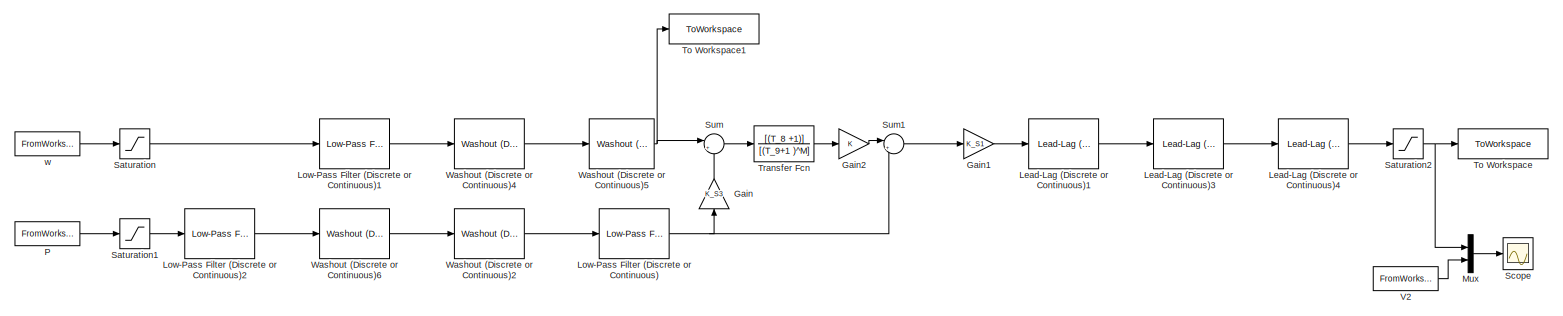
[diagram: root canvas - part 1/1, most of the canvas]
MODEL slx_57f6dd41a064
KIND model
CONFIG AbsTol = auto
CONFIG EnableMultiTasking = off
CONFIG FixedStep = 0.005
CONFIG MaxStep = 0.005
CONFIG MinStep = auto
CONFIG RelTol = 1e-3
CONFIG SampleTimeConstraint = Unconstrained
CONFIG Solver = ode8
CONFIG SolverName = ode8
CONFIG StartTime = 0.0
CONFIG StopTime = 5
BLOCK [Gain] Gain
  Gain = K_S3
  NameLocation = right
BLOCK [Gain] Gain1
  Gain = K_S1
BLOCK [Gain] Gain2
BLOCK [Reference] Lead-Lag (Discrete or Continuous)1  REF=eeGeneralControl/Lead-Lag
(Discrete or Continuous)
  Ports = [1, 1]
  SourceBlock = eeGeneralControl/Lead-Lag\n(Discrete or Continuous)
  SourceProductBaseCode = PS
  SourceType = Lead-Lag (Discrete or Continuous)
BLOCK [Reference] Lead-Lag (Discrete or Continuous)3  REF=eeGeneralControl/Lead-Lag
(Discrete or Continuous)
  Ports = [1, 1]
  SourceBlock = eeGeneralControl/Lead-Lag\n(Discrete or Continuous)
  SourceProductBaseCode = PS
  SourceType = Lead-Lag (Discrete or Continuous)
BLOCK [Reference] Lead-Lag (Discrete or Continuous)4  REF=eeGeneralControl/Lead-Lag
(Discrete or Continuous)
  Ports = [1, 1]
  SourceBlock = eeGeneralControl/Lead-Lag\n(Discrete or Continuous)
  SourceProductBaseCode = PS
  SourceType = Lead-Lag (Discrete or Continuous)
BLOCK [Reference] Low-Pass Filter (Discrete or Continuous)  REF=eeGeneralControl/Low-Pass Filter
(Discrete or Continuous)
  Ports = [1, 1]
  SourceBlock = eeGeneralControl/Low-Pass Filter\n(Discrete or Continuous)
  SourceProductBaseCode = PS
  SourceType = Low-Pass Filter (Discrete or Continuous)
BLOCK [Reference] Low-Pass Filter (Discrete or Continuous)1  REF=eeGeneralControl/Low-Pass Filter
(Discrete or Continuous)
  Ports = [1, 1]
  SourceBlock = eeGeneralControl/Low-Pass Filter\n(Discrete or Continuous)
  SourceProductBaseCode = PS
  SourceType = Low-Pass Filter (Discrete or Continuous)
BLOCK [Reference] Low-Pass Filter (Discrete or Continuous)2  REF=eeGeneralControl/Low-Pass Filter
(Discrete or Continuous)
  Ports = [1, 1]
  SourceBlock = eeGeneralControl/Low-Pass Filter\n(Discrete or Continuous)
  SourceProductBaseCode = PS
  SourceType = Low-Pass Filter (Discrete or Continuous)
BLOCK [Mux] Mux
  DisplayOption = bar
  Inputs = 2
  Ports = [2, 1]
BLOCK [FromWorkspace] P
  VariableName = [time,P]
BLOCK [Saturate] Saturation
  LowerLimit = V_S1MIN
  UpperLimit = V_S1MAX
BLOCK [Saturate] Saturation1
  LowerLimit = V_S2MIN
  UpperLimit = V_S2MAX
BLOCK [Saturate] Saturation2
  LowerLimit = V_STMIN
  UpperLimit = V_STMAX
BLOCK [Scope] Scope
  Floating = off
  NumInputPorts = 1
  Ports = [1]
  ScopeSpecificationString = Simulink.scopes.TimeScopeBlockCfg('CurrentConfiguration', extmgr.ConfigurationSet(extmgr.Configuration('Core','General UI',true,'FigureColor',[1 1 1]),extmgr.Configuration('Core','Source UI',true),extmgr.Configuration('Sources','WiredSimulink',true),extmgr.Configuration('Visuals','Time Domain',true,'SerializedDisplays',{struct('MinYLimReal','-0.0262','MaxYLimReal','0.01056','YLabelReal','','MinYLi...<+1398ch>
BLOCK [Sum] Sum
  Inputs = |++
  Ports = [2, 1]
BLOCK [Sum] Sum1
  Inputs = |+-
  Ports = [2, 1]
BLOCK [ToWorkspace] To Workspace
  FixptAsFi = on
  MaxDataPoints = inf
  Ports = [1]
  SampleTime = -1
  SaveFormat = Timeseries
  VariableName = VPSS
BLOCK [ToWorkspace] To Workspace1
  FixptAsFi = on
  MaxDataPoints = inf
  Ports = [1]
  SampleTime = -1
  SaveFormat = Timeseries
  VariableName = simout
BLOCK [TransferFcn] Transfer Fcn
  Denominator = [(T_9+1 )^M]
  Numerator = [(T_8 +1)]
BLOCK [FromWorkspace] V2
  VariableName = [t,V_PSS]
BLOCK [Reference] Washout (Discrete or Continuous)2  REF=eeGeneralControl/Washout
(Discrete or Continuous)
  Ports = [1, 1]
  SourceBlock = eeGeneralControl/Washout\n(Discrete or Continuous)
  SourceProductBaseCode = PS
  SourceType = Washout (Discrete or Continuous)
BLOCK [Reference] Washout (Discrete or Continuous)4  REF=eeGeneralControl/Washout
(Discrete or Continuous)
  Ports = [1, 1]
  SourceBlock = eeGeneralControl/Washout\n(Discrete or Continuous)
  SourceProductBaseCode = PS
  SourceType = Washout (Discrete or Continuous)
BLOCK [Reference] Washout (Discrete or Continuous)5  REF=eeGeneralControl/Washout
(Discrete or Continuous)
  Ports = [1, 1]
  SourceBlock = eeGeneralControl/Washout\n(Discrete or Continuous)
  SourceProductBaseCode = PS
  SourceType = Washout (Discrete or Continuous)
BLOCK [Reference] Washout (Discrete or Continuous)6  REF=eeGeneralControl/Washout
(Discrete or Continuous)
  Ports = [1, 1]
  SourceBlock = eeGeneralControl/Washout\n(Discrete or Continuous)
  SourceProductBaseCode = PS
  SourceType = Washout (Discrete or Continuous)
BLOCK [FromWorkspace] w
  VariableName = [time,w]
LINE Gain1:1 -> Lead-Lag (Discrete or Continuous)1:1
LINE Gain2:1 -> Sum1:1
LINE Gain:1 -> Sum:2
LINE Lead-Lag (Discrete or Continuous)1:1 -> Lead-Lag (Discrete or Continuous)3:1
LINE Lead-Lag (Discrete or Continuous)3:1 -> Lead-Lag (Discrete or Continuous)4:1
LINE Lead-Lag (Discrete or Continuous)4:1 -> Saturation2:1
LINE Low-Pass Filter (Discrete or Continuous)1:1 -> Washout (Discrete or Continuous)4:1
LINE Low-Pass Filter (Discrete or Continuous)2:1 -> Washout (Discrete or Continuous)6:1
NET Low-Pass Filter (Discrete or Continuous):1 -> Gain:1, Sum1:2
LINE Mux:1 -> Scope:1
LINE P:1 -> Saturation1:1
LINE Saturation1:1 -> Low-Pass Filter (Discrete or Continuous)2:1
NET Saturation2:1 -> Mux:1, To Workspace:1
LINE Saturation:1 -> Low-Pass Filter (Discrete or Continuous)1:1
LINE Sum1:1 -> Gain1:1
LINE Sum:1 -> Transfer Fcn:1
LINE Transfer Fcn:1 -> Gain2:1
LINE V2:1 -> Mux:2
LINE Washout (Discrete or Continuous)2:1 -> Low-Pass Filter (Discrete or Continuous):1
LINE Washout (Discrete or Continuous)4:1 -> Washout (Discrete or Continuous)5:1
NET Washout (Discrete or Continuous)5:1 -> Sum:1, To Workspace1:1
LINE Washout (Discrete or Continuous)6:1 -> Washout (Discrete or Continuous)2:1
LINE w:1 -> Saturation:1
note: NET lines group one-source signal fan-out (src -> all destinations, sorted); 1:1 wires keep LINE
